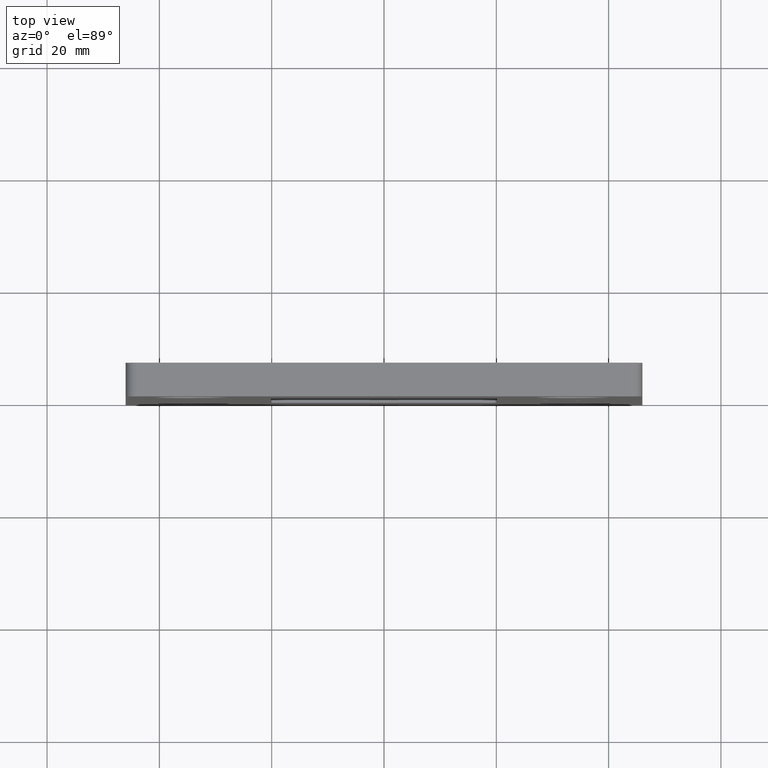
[diagram: clean part render]
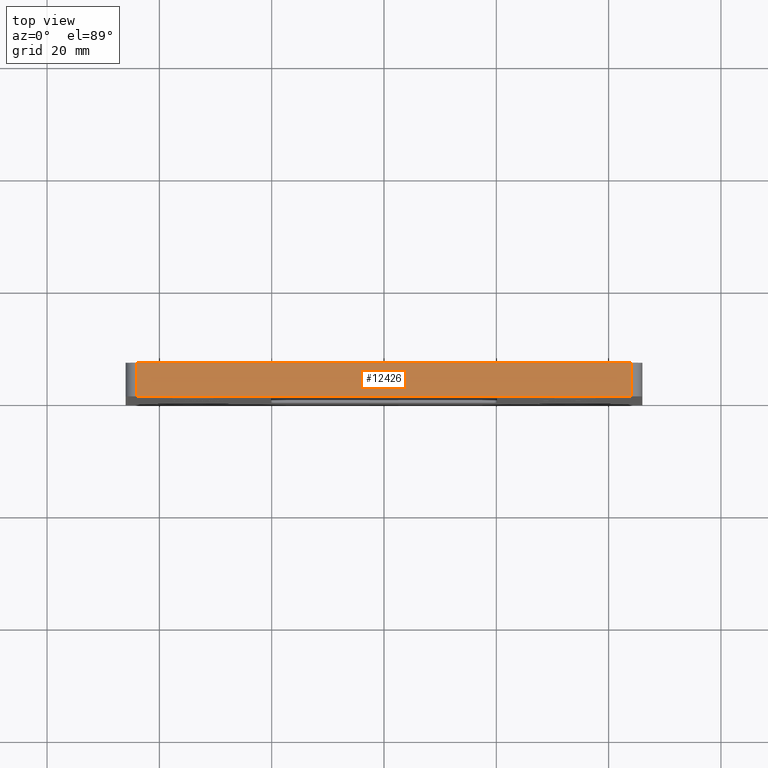
[diagram: same view with one face highlighted and labeled with its STEP entity id]
A machine part, top view. The second image highlights one B-rep face of the part: STEP entity #12426.
In plain terms, the highlighted planar face has unit normal (0, 0, -1).
Its self-contained STEP definition (entity closure, byte-faithful):
#643 = FACE_OUTER_BOUND ( 'NONE', #13118, .T. ) ;
#967 = LINE ( 'NONE', #14643, #14587 ) ;
#1148 = LINE ( 'NONE', #7670, #6553 ) ;
#1174 = CARTESIAN_POINT ( 'NONE',  ( -46.00000000000000000, 6.000000000000000000, 45.99999999999999289 ) ) ;
#1199 = ORIENTED_EDGE ( 'NONE', *, *, #12939, .F. ) ;
#2249 = ORIENTED_EDGE ( 'NONE', *, *, #13879, .T. ) ;
#2788 = CARTESIAN_POINT ( 'NONE',  ( -44.00000000000000000, 6.000000000000000000, 45.99999999999999289 ) ) ;
#2945 = DIRECTION ( 'NONE',  ( -0.000000000000000000, 1.000000000000000000, -0.000000000000000000 ) ) ;
#3931 = DIRECTION ( 'NONE',  ( 0.000000000000000000, -1.000000000000000000, 0.000000000000000000 ) ) ;
#5467 = VERTEX_POINT ( 'NONE', #2788 ) ;
#5633 = LINE ( 'NONE', #12440, #12525 ) ;
#6066 = DIRECTION ( 'NONE',  ( 0.000000000000000000, 0.000000000000000000, -1.000000000000000000 ) ) ;
#6218 = DIRECTION ( 'NONE',  ( -1.000000000000000000, 0.000000000000000000, -0.000000000000000000 ) ) ;
#6264 = EDGE_CURVE ( 'NONE', #10714, #7196, #967, .T. ) ;
#6553 = VECTOR ( 'NONE', #2945, 1000.000000000000000 ) ;
#7196 = VERTEX_POINT ( 'NONE', #10808 ) ;
#7325 = ORIENTED_EDGE ( 'NONE', *, *, #12631, .T. ) ;
#7670 = CARTESIAN_POINT ( 'NONE',  ( 44.00000000000000000, 6.000000000000000000, 45.99999999999999289 ) ) ;
#8227 = ORIENTED_EDGE ( 'NONE', *, *, #6264, .T. ) ;
#8463 = AXIS2_PLACEMENT_3D ( 'NONE', #1174, #6066, #6218 ) ;
#8690 = DIRECTION ( 'NONE',  ( 1.000000000000000000, 0.000000000000000000, 0.000000000000000000 ) ) ;
#10624 = VECTOR ( 'NONE', #3931, 1000.000000000000000 ) ;
#10714 = VERTEX_POINT ( 'NONE', #13702 ) ;
#10808 = CARTESIAN_POINT ( 'NONE',  ( 44.00000000000000000, 0.000000000000000000, 45.99999999999999289 ) ) ;
#12426 = ADVANCED_FACE ( 'NONE', ( #643 ), #13510, .F. ) ;
#12440 = CARTESIAN_POINT ( 'NONE',  ( -46.00000000000000000, 6.000000000000000000, 45.99999999999999289 ) ) ;
#12525 = VECTOR ( 'NONE', #8690, 1000.000000000000000 ) ;
#12631 = EDGE_CURVE ( 'NONE', #5467, #10714, #13286, .T. ) ;
#12939 = EDGE_CURVE ( 'NONE', #5467, #14294, #5633, .T. ) ;
#13118 = EDGE_LOOP ( 'NONE', ( #1199, #7325, #8227, #2249 ) ) ;
#13286 = LINE ( 'NONE', #14852, #10624 ) ;
#13510 = PLANE ( 'NONE',  #8463 ) ;
#13569 = DIRECTION ( 'NONE',  ( 1.000000000000000000, 0.000000000000000000, 0.000000000000000000 ) ) ;
#13702 = CARTESIAN_POINT ( 'NONE',  ( -44.00000000000000000, 0.000000000000000000, 45.99999999999999289 ) ) ;
#13879 = EDGE_CURVE ( 'NONE', #7196, #14294, #1148, .T. ) ;
#14294 = VERTEX_POINT ( 'NONE', #15396 ) ;
#14587 = VECTOR ( 'NONE', #13569, 1000.000000000000000 ) ;
#14643 = CARTESIAN_POINT ( 'NONE',  ( -46.00000000000000000, 0.000000000000000000, 45.99999999999999289 ) ) ;
#14852 = CARTESIAN_POINT ( 'NONE',  ( -44.00000000000000000, 6.000000000000000000, 45.99999999999999289 ) ) ;
#15396 = CARTESIAN_POINT ( 'NONE',  ( 44.00000000000000000, 6.000000000000000000, 45.99999999999999289 ) ) ;